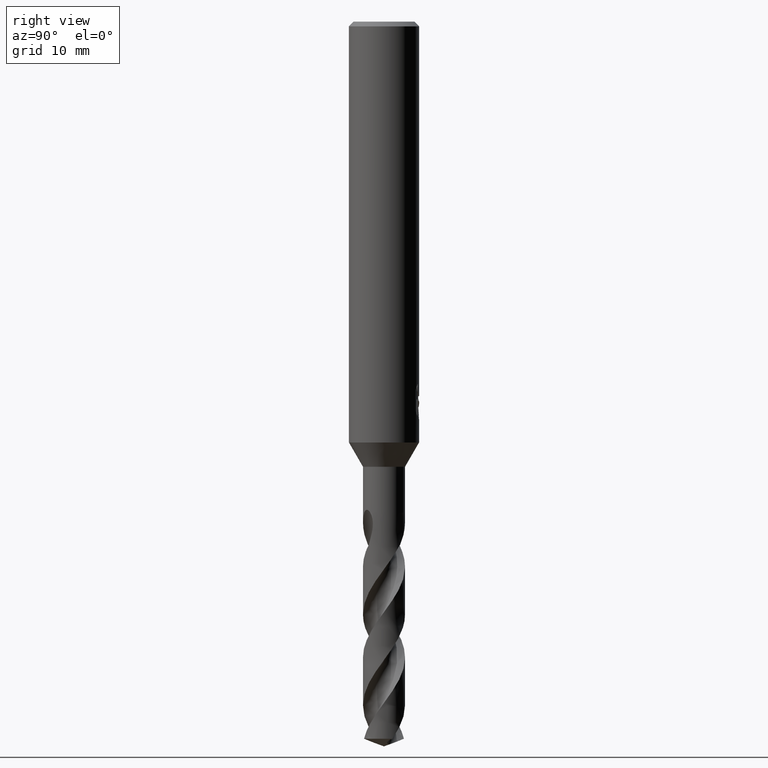
[diagram: clean part render]
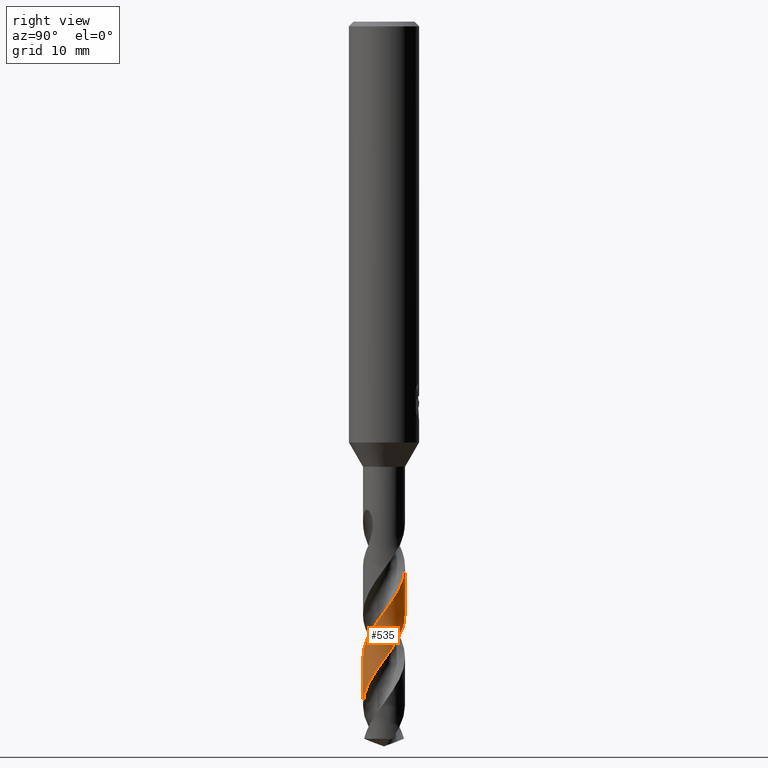
[diagram: same view with one face highlighted and labeled with its STEP entity id]
A machine part, right view. The second image highlights one B-rep face of the part: STEP entity #535.
In plain terms, the highlighted conical surface has half-angle 0 deg.
Its self-contained STEP definition (entity closure, byte-faithful):
#339=EDGE_CURVE('',#689,#525,#837,.T.);
#391=EDGE_CURVE('',#409,#709,#895,.T.);
#409=VERTEX_POINT('',#915);
#525=VERTEX_POINT('',#1040);
#529=EDGE_CURVE('',#689,#709,#1044,.T.);
#535=ADVANCED_FACE('',(#1050),#1051,.T.);
#551=EDGE_CURVE('',#409,#525,#1068,.T.);
#689=VERTEX_POINT('',#1218);
#709=VERTEX_POINT('',#1240);
#837=LINE('',#2212,#2213);
#895=LINE('',#2344,#2345);
#915=CARTESIAN_POINT('',(1.54432829102446E-013,-1.79998520870991,-58.4835001682653));
#1040=CARTESIAN_POINT('',(-3.37949462589216E-013,1.79994508140663,-50.7209321035855));
#1044=B_SPLINE_CURVE_WITH_KNOTS('',3,(#2924,#2925,#2926,#2927,#2928,#2929,#2930,#2931,#2932,#2933,#2934,#2935,#2936,#2937,#2938,#2939,#2940,#2941,#2942,#2943,#2944,#2945,#2946,#2947,#2948,#2949,#2950,#2951,#2952,#2953,#2954,#2955,#2956,#2957,#2958,#2959,#2960,#2961,#2962,#2963,#2964,#2965,#2966,#2967,#2968,#2969,#2970,#2971,#2972,#2973,#2974,#2975,#2976,#2977,#2978,#2979,#2980,#2981,#2982,#2983,#2984,#2985,#2986,#2987,#2988,#2989,#2990,#2991,#2992,#2993,#2994,#2995,#2996,#2997,#2998,#2999,#3000,#3001,#3002,#3003,#3004,#3005,#3006,#3007,#3008,#3009,#3010,#3011,#3012,#3013,#3014,#3015),.UNSPECIFIED.,.F.,.F.,(4,2,2,2,2,2,2,2,2,2,2,2,2,2,2,2,2,2,2,2,2,2,2,2,2,2,2,2,2,2,2,2,2,2,2,2,2,2,2,2,2,2,2,2,2,4),(0.0,0.0801275728356934,0.130640581271298,0.152770367560535,0.364242791769353,0.436986929266372,0.483223075265851,0.526425984111781,0.584005423472898,0.64787631398162,0.711979466175985,0.937580127871979,1.09061263745437,1.24729845891459,1.41532175623204,1.85228257452561,2.28668484765657,3.88904521678665,4.19995671742326,4.83198279183286,5.34008231756774,5.41199511941395,6.4894051909236,6.86720263610227,7.52038772077632,8.02813889238809,8.06407526817173,9.08928789291321,9.5281073355874,10.1611718763682,11.1740732910324,11.6763649494397,12.6696582946601,13.1752127393228,13.5562524910559,14.2031650488221,14.7103302923921,14.7829546060452,15.8480917383284,16.230617229164,16.8729634825393,17.804559745901,18.4974868234268,19.0192346383442,19.806682905026,20.6024096482353),.UNSPECIFIED.);
#1050=FACE_OUTER_BOUND('',#3035,.T.);
#1051=CONICAL_SURFACE('',#3036,1.79995,5.16933351778713E-006);
#1068=B_SPLINE_CURVE_WITH_KNOTS('',3,(#3096,#3097,#3098,#3099,#3100,#3101,#3102,#3103,#3104,#3105,#3106,#3107,#3108,#3109,#3110,#3111,#3112,#3113,#3114,#3115,#3116,#3117,#3118,#3119,#3120,#3121,#3122,#3123,#3124,#3125,#3126,#3127,#3128,#3129,#3130,#3131,#3132,#3133,#3134,#3135,#3136,#3137,#3138,#3139,#3140,#3141,#3142,#3143,#3144,#3145,#3146,#3147,#3148,#3149,#3150,#3151,#3152,#3153,#3154,#3155,#3156,#3157,#3158,#3159,#3160,#3161,#3162,#3163,#3164,#3165,#3166,#3167,#3168,#3169,#3170,#3171,#3172,#3173,#3174,#3175,#3176,#3177,#3178,#3179,#3180,#3181),.UNSPECIFIED.,.F.,.F.,(4,2,2,2,2,2,2,2,2,2,2,2,2,2,2,2,2,2,2,2,2,2,2,2,2,2,2,2,2,2,2,2,2,2,2,2,2,2,2,2,2,2,4),(0.0,1.12411938036322,1.49324315704113,1.74453484574494,1.94282180091867,3.12705528991454,3.33654301239007,3.95056891416491,4.29934719736765,4.79735921376205,5.45424133829332,6.06638189493079,6.68732988189182,7.03621234367762,7.5130802149083,8.51715431163137,8.61247286430807,9.8791590155175,9.97483264010817,11.2588728954634,11.3581590474799,12.023501562368,12.3548440012357,12.8572270642529,13.5478783817825,14.2140701310191,14.8728094680683,15.1574742927351,15.5829827516386,16.1999208734387,16.9304378066444,18.6258990346717,18.8534289403823,19.1928745820494,19.5643500056512,19.8131056433637,20.0457090619538,20.178211271906,20.2571943623207,20.3322287400588,20.43500247704,20.6530979104347,20.9221348459928),.UNSPECIFIED.);
#1218=CARTESIAN_POINT('',(-4.99576087066229E-014,1.79992393457106,-46.630107724356));
#1240=CARTESIAN_POINT('',(1.93326473997876E-011,-1.79996406285208,-54.3928649318378));
#2212=CARTESIAN_POINT('',(-2.17192993895783E-016,1.79995,-51.6724267891604));
#2213=VECTOR('',#5248,1.0);
#2344=CARTESIAN_POINT('',(2.23653047416734E-016,-1.79995,-51.6724267891604));
#2345=VECTOR('',#5316,1.0);
#2924=CARTESIAN_POINT('',(-1.25107846384555,1.29402218899784,-44.7266));
#2925=CARTESIAN_POINT('',(-1.24027997315074,1.30446247723825,-44.7486856030282));
#2926=CARTESIAN_POINT('',(-1.22931985899429,1.31479805987491,-44.770741940663));
#2927=CARTESIAN_POINT('',(-1.21112952030387,1.33152123625317,-44.8066507058394));
#2928=CARTESIAN_POINT('',(-1.20402683326182,1.33794784889731,-44.8205053007073));
#2929=CARTESIAN_POINT('',(-1.19369278018802,1.34714816521415,-44.840408565273));
#2930=CARTESIAN_POINT('',(-1.19053018046315,1.34994398135344,-44.8464661610803));
#2931=CARTESIAN_POINT('',(-1.15697992201892,1.37939290758704,-44.9103678385539));
#2932=CARTESIAN_POINT('',(-1.12574948806274,1.40503159711375,-44.9667047948314));
#2933=CARTESIAN_POINT('',(-1.08132242832629,1.43897296937848,-45.0429731437794));
#2934=CARTESIAN_POINT('',(-1.06981352638825,1.44755102496615,-45.0624129704402));
#2935=CARTESIAN_POINT('',(-1.05073363354246,1.46141726782043,-45.0941929911817));
#2936=CARTESIAN_POINT('',(-1.04326662140661,1.4667573666756,-45.1065212586565));
#2937=CARTESIAN_POINT('',(-1.02871559874037,1.47699571458388,-45.1303615402892));
#2938=CARTESIAN_POINT('',(-1.0216450275926,1.48189543218479,-45.1418635278364));
#2939=CARTESIAN_POINT('',(-1.00505162866476,1.4932186458541,-45.1686943669944));
#2940=CARTESIAN_POINT('',(-0.995507011768867,1.49959891529972,-45.1840046647025));
#2941=CARTESIAN_POINT('',(-0.975243171108675,1.5128657789001,-45.2163207799261));
#2942=CARTESIAN_POINT('',(-0.964525549533127,1.51972105296408,-45.2333035952023));
#2943=CARTESIAN_POINT('',(-0.942935684377382,1.53321091839622,-45.2673948177004));
#2944=CARTESIAN_POINT('',(-0.932181788504982,1.53977270350674,-45.2843314228932));
#2945=CARTESIAN_POINT('',(-0.882805814234656,1.56919078380765,-45.3620438079946));
#2946=CARTESIAN_POINT('',(-0.843737429614365,1.59052298104124,-45.4232076540324));
#2947=CARTESIAN_POINT('',(-0.777391191302479,1.6236585127211,-45.5256396948722));
#2948=CARTESIAN_POINT('',(-0.750263648624428,1.63637008695651,-45.5671377068432));
#2949=CARTESIAN_POINT('',(-0.69477608754419,1.66070275909973,-45.651020383976));
#2950=CARTESIAN_POINT('',(-0.666350073345946,1.67231339256699,-45.6934815636537));
#2951=CARTESIAN_POINT('',(-0.606751035829838,1.6948897122226,-45.7812983847883));
#2952=CARTESIAN_POINT('',(-0.575719031953793,1.70568057624154,-45.8262998629498));
#2953=CARTESIAN_POINT('',(-0.462544629126563,1.74158578142141,-45.9888747946772));
#2954=CARTESIAN_POINT('',(-0.379088455427082,1.76163305914027,-46.1057598569263));
#2955=CARTESIAN_POINT('',(-0.210515162809677,1.78959802250242,-46.3400333641579));
#2956=CARTESIAN_POINT('',(-0.125714246723434,1.79753673626182,-46.4571726928985));
#2957=CARTESIAN_POINT('',(0.272565774571205,1.80656304044718,-47.0051248461491));
#2958=CARTESIAN_POINT('',(0.582677163669993,1.73170316361575,-47.4278651026435));
#2959=CARTESIAN_POINT('',(0.912150075500356,1.55288241310251,-47.9420120771048));
#2960=CARTESIAN_POINT('',(0.964134349643687,1.52114983345936,-48.0255148732838));
#2961=CARTESIAN_POINT('',(1.11652214052572,1.41718865794256,-48.2791380234444));
#2962=CARTESIAN_POINT('',(1.21127928594,1.33711923303439,-48.4489430878359));
#2963=CARTESIAN_POINT('',(1.36610806294819,1.1761883757985,-48.75546117606));
#2964=CARTESIAN_POINT('',(1.4290602482175,1.09885022034302,-48.891629060111));
#2965=CARTESIAN_POINT('',(1.49327020872929,1.00504422136788,-49.0474994326812));
#2966=CARTESIAN_POINT('',(1.5010915339852,0.993324841130369,-49.0668211680548));
#2967=CARTESIAN_POINT('',(1.62388653655451,0.80456843900387,-49.3758203885027));
#2968=CARTESIAN_POINT('',(1.70705542658564,0.608591173500975,-49.6642722627178));
#2969=CARTESIAN_POINT('',(1.77089672056618,0.330459389006471,-50.0555433257593));
#2970=CARTESIAN_POINT('',(1.78298521001172,0.257353129290507,-50.1569468416767));
#2971=CARTESIAN_POINT('',(1.8035999081013,0.0564841602595887,-50.4344024448235));
#2972=CARTESIAN_POINT('',(1.80306146960774,-0.0718773539759362,-50.6099825883865));
#2973=CARTESIAN_POINT('',(1.77788320827086,-0.298069436001126,-50.9223133860093));
#2974=CARTESIAN_POINT('',(1.758682554073,-0.395927779319998,-51.0584938044839));
#2975=CARTESIAN_POINT('',(1.7295569126317,-0.498491573460314,-51.2047274072979));
#2976=CARTESIAN_POINT('',(1.7275924330117,-0.505257877377468,-51.2143916477592));
#2977=CARTESIAN_POINT('',(1.66840227081449,-0.704745699690844,-51.4998987247195));
#2978=CARTESIAN_POINT('',(1.57926666135973,-0.886692270422783,-51.7749678868059));
#2979=CARTESIAN_POINT('',(1.41163726958623,-1.12005648430381,-52.1689502920746));
#2980=CARTESIAN_POINT('',(1.35647417462525,-1.18625886668505,-52.2867267828357));
#2981=CARTESIAN_POINT('',(1.21074840916992,-1.33765769818534,-52.5754130267082));
#2982=CARTESIAN_POINT('',(1.11562485281688,-1.41797258877119,-52.7457724443571));
#2983=CARTESIAN_POINT('',(0.848701123769507,-1.59970082643918,-53.1889918377442));
#2984=CARTESIAN_POINT('',(0.66711347020152,-1.68351672253562,-53.4594121475296));
#2985=CARTESIAN_POINT('',(0.38068494713536,-1.761996755098,-53.8676128596576));
#2986=CARTESIAN_POINT('',(0.283692882374468,-1.78019711190531,-54.002667726906));
#2987=CARTESIAN_POINT('',(-0.00829648629090884,-1.81047319803751,-54.4052824610058));
#2988=CARTESIAN_POINT('',(-0.204121966597569,-1.79892881996381,-54.6712144494556));
#2989=CARTESIAN_POINT('',(-0.490888836109649,-1.73457154250139,-55.0749468080224));
#2990=CARTESIAN_POINT('',(-0.585713077924323,-1.70489804761957,-55.2107723943971));
#2991=CARTESIAN_POINT('',(-0.746968443232303,-1.63936716658188,-55.4494183896481));
#2992=CARTESIAN_POINT('',(-0.814397092613209,-1.60693260953116,-55.5517905927933));
#2993=CARTESIAN_POINT('',(-0.99026340093244,-1.50843216362092,-55.8287315705348));
#2994=CARTESIAN_POINT('',(-1.09413211677815,-1.434884856726,-56.0028345646159));
#2995=CARTESIAN_POINT('',(-1.26413173513083,-1.28521766504058,-56.3136743945243));
#2996=CARTESIAN_POINT('',(-1.33326737773708,-1.21335141645174,-56.4498566137454));
#2997=CARTESIAN_POINT('',(-1.40511646764783,-1.12506125472204,-56.6059742084144));
#2998=CARTESIAN_POINT('',(-1.41398141273816,-1.11389941508282,-56.6255259230054));
#2999=CARTESIAN_POINT('',(-1.5507744055079,-0.937399827261559,-56.9320152194358));
#3000=CARTESIAN_POINT('',(-1.64917661896449,-0.750955585474589,-57.2177628447105));
#3001=CARTESIAN_POINT('',(-1.73636596541471,-0.48022094166484,-57.607724608749));
#3002=CARTESIAN_POINT('',(-1.75488498473826,-0.407364727383775,-57.7105714462325));
#3003=CARTESIAN_POINT('',(-1.79216083580235,-0.209729569420195,-57.9868881270495));
#3004=CARTESIAN_POINT('',(-1.80245783696777,-0.0836850975501078,-58.1598958509633));
#3005=CARTESIAN_POINT('',(-1.79517104991919,0.225362787820108,-58.5841348364943));
#3006=CARTESIAN_POINT('',(-1.76299388526116,0.4064619120893,-58.8332487263245));
#3007=CARTESIAN_POINT('',(-1.66038530358428,0.708211517284509,-59.2713983407626));
#3008=CARTESIAN_POINT('',(-1.60214312845797,0.831650797378466,-59.4576129720634));
#3009=CARTESIAN_POINT('',(-1.47650915677744,1.03460301917693,-59.784935270995));
#3010=CARTESIAN_POINT('',(-1.41523180391952,1.11694998150334,-59.9252314559151));
#3011=CARTESIAN_POINT('',(-1.2448569225695,1.30927228921115,-60.2782926668155));
#3012=CARTESIAN_POINT('',(-1.12781808577772,1.41137370641141,-60.4897249391201));
#3013=CARTESIAN_POINT('',(-0.86891792692422,1.58412294119532,-60.9162754521077));
#3014=CARTESIAN_POINT('',(-0.728215360799584,1.65348767870022,-61.1301272405968));
#3015=CARTESIAN_POINT('',(-0.580592727958881,1.70379343942899,-61.3448535783208));
#3035=EDGE_LOOP('',(#5495,#5496,#5497,#5498));
#3036=AXIS2_PLACEMENT_3D('',#5499,#5500,#5501);
#3096=CARTESIAN_POINT('',(-1.64813797036206,-0.723630589908148,-61.3448535783208));
#3097=CARTESIAN_POINT('',(-1.55907774788649,-0.92646988992758,-61.0426459900695));
#3098=CARTESIAN_POINT('',(-1.43361391478408,-1.11064020517116,-60.7372898041585));
#3099=CARTESIAN_POINT('',(-1.22702119732803,-1.31896174919522,-60.3355519989796));
#3100=CARTESIAN_POINT('',(-1.17289139852565,-1.36731948228192,-60.236534160926));
#3101=CARTESIAN_POINT('',(-1.0772716460219,-1.44287860706178,-60.0696093073097));
#3102=CARTESIAN_POINT('',(-1.03736579050346,-1.47182444548981,-60.0020378104356));
#3103=CARTESIAN_POINT('',(-0.964069567802687,-1.52054246158198,-59.8808563086614));
#3104=CARTESIAN_POINT('',(-0.93113180372499,-1.54092981920663,-59.8272911324396));
#3105=CARTESIAN_POINT('',(-0.69711010113258,-1.67555463476553,-59.4549919737755));
#3106=CARTESIAN_POINT('',(-0.476568229454699,-1.75104681221587,-59.1447401808734));
#3107=CARTESIAN_POINT('',(-0.207389769483681,-1.7884658751184,-58.7698019530655));
#3108=CARTESIAN_POINT('',(-0.166796640270785,-1.79270907325249,-58.7133098845063));
#3109=CARTESIAN_POINT('',(-0.00626075828157309,-1.80396947871984,-58.49145692073));
#3110=CARTESIAN_POINT('',(0.114251174413892,-1.80039820326396,-58.3273866342543));
#3111=CARTESIAN_POINT('',(0.301744093499417,-1.77583271316578,-58.0688170313883));
#3112=CARTESIAN_POINT('',(0.36901159383645,-1.76307552141418,-57.9753343367017));
#3113=CARTESIAN_POINT('',(0.529958997167464,-1.72296049452636,-57.747603781038));
#3114=CARTESIAN_POINT('',(0.6223506812157,-1.69177452946414,-57.6128203544186));
#3115=CARTESIAN_POINT('',(0.829853683870008,-1.602429315277,-57.3022338101806));
#3116=CARTESIAN_POINT('',(0.942227235901725,-1.53906640147755,-57.1271909055034));
#3117=CARTESIAN_POINT('',(1.14466643691986,-1.39429773520166,-56.7865306581728));
#3118=CARTESIAN_POINT('',(1.2348746106617,-1.31500729795,-56.6212696612529));
#3119=CARTESIAN_POINT('',(1.39887324829514,-1.13917509743918,-56.290217351832));
#3120=CARTESIAN_POINT('',(1.47246885862468,-1.04236222166026,-56.1248811290354));
#3121=CARTESIAN_POINT('',(1.5714856640054,-0.880339030140718,-55.8651874296132));
#3122=CARTESIAN_POINT('',(1.60369860560651,-0.820171623670064,-55.7719321673608));
#3123=CARTESIAN_POINT('',(1.67158965301551,-0.674046371438702,-55.5504194922057));
#3124=CARTESIAN_POINT('',(1.70417574237739,-0.586812835556721,-55.4216883117955));
#3125=CARTESIAN_POINT('',(1.78408656194754,-0.308828228461722,-55.0242991885647));
#3126=CARTESIAN_POINT('',(1.80700792806774,-0.113051385317736,-54.7601235778661));
#3127=CARTESIAN_POINT('',(1.79724253670254,0.100674314416281,-54.464797842195));
#3128=CARTESIAN_POINT('',(1.79611198269064,0.119145258823308,-54.4391911753532));
#3129=CARTESIAN_POINT('',(1.77589961882218,0.382759052938424,-54.0739117752759));
#3130=CARTESIAN_POINT('',(1.70713412242742,0.621195261158978,-53.7447950254864));
#3131=CARTESIAN_POINT('',(1.58406131081425,0.854953641921537,-53.3800619306313));
#3132=CARTESIAN_POINT('',(1.57518603792353,0.871196620125842,-53.354447770689));
#3133=CARTESIAN_POINT('',(1.44346459283544,1.10367178745066,-52.985340507672));
#3134=CARTESIAN_POINT('',(1.27758639211249,1.29199537482523,-52.6527761163337));
#3135=CARTESIAN_POINT('',(1.06348167000705,1.45231079658459,-52.2832415320888));
#3136=CARTESIAN_POINT('',(1.04793811510445,1.46356683984874,-52.2566917113052));
#3137=CARTESIAN_POINT('',(0.926360997996077,1.54866292825599,-52.0518136932591));
#3138=CARTESIAN_POINT('',(0.812630771308074,1.61131196435716,-51.8751696191065));
#3139=CARTESIAN_POINT('',(0.633043546631002,1.68619657055166,-51.6090953218797));
#3140=CARTESIAN_POINT('',(0.572105210489127,1.70782878245848,-51.5207987404292));
#3141=CARTESIAN_POINT('',(0.416352232751806,1.75386480704476,-51.2979778131649));
#3142=CARTESIAN_POINT('',(0.320616441671899,1.77384809253672,-51.1628550080548));
#3143=CARTESIAN_POINT('',(0.0906912718115085,1.80265765319494,-50.8440480833338));
#3144=CARTESIAN_POINT('',(-0.0440361777720671,1.8044299102622,-50.6613287782073));
#3145=CARTESIAN_POINT('',(-0.307087728698379,1.77829614584792,-50.2995364678267));
#3146=CARTESIAN_POINT('',(-0.434201365832459,1.7515558050323,-50.1208102855282));
#3147=CARTESIAN_POINT('',(-0.67850276396783,1.67204507229003,-49.7673738095596));
#3148=CARTESIAN_POINT('',(-0.795580443932835,1.61964522258583,-49.5932281148711));
#3149=CARTESIAN_POINT('',(-0.954122997688022,1.52724974481075,-49.3421001825572));
#3150=CARTESIAN_POINT('',(-1.00057374278275,1.49722200322002,-49.266393213726));
#3151=CARTESIAN_POINT('',(-1.1126578389655,1.41724053350639,-49.0770273807366));
#3152=CARTESIAN_POINT('',(-1.17634444146857,1.36484337336488,-48.9629565202176));
#3153=CARTESIAN_POINT('',(-1.32331998656484,1.22593351275078,-48.6849245497431));
#3154=CARTESIAN_POINT('',(-1.4020038617771,1.13514617396907,-48.5217411879596));
#3155=CARTESIAN_POINT('',(-1.55306036925771,0.920848946939103,-48.1630825238164));
#3156=CARTESIAN_POINT('',(-1.62070925298458,0.795633677827889,-47.9674564492609));
#3157=CARTESIAN_POINT('',(-1.79394308137507,0.359351703532186,-47.3212522313856));
#3158=CARTESIAN_POINT('',(-1.82916127274988,0.0274158912374177,-46.8842788998041));
#3159=CARTESIAN_POINT('',(-1.76838534328388,-0.338317881233773,-46.3720098597111));
#3160=CARTESIAN_POINT('',(-1.75964601977304,-0.381170905024912,-46.3112432143355));
#3161=CARTESIAN_POINT('',(-1.73390115264819,-0.487430986923653,-46.1602724415822));
#3162=CARTESIAN_POINT('',(-1.71493022078593,-0.550576660948558,-46.0700944747612));
#3163=CARTESIAN_POINT('',(-1.66759310957754,-0.681263887643777,-45.8821353355285));
#3164=CARTESIAN_POINT('',(-1.63974934449616,-0.745603993135924,-45.7900436504507));
#3165=CARTESIAN_POINT('',(-1.58674071287272,-0.850999591570335,-45.6305203984968));
#3166=CARTESIAN_POINT('',(-1.56416338479961,-0.891734079052297,-45.5664056230913));
#3167=CARTESIAN_POINT('',(-1.51840729235638,-0.967455973217168,-45.4404579157813));
#3168=CARTESIAN_POINT('',(-1.49554078211119,-1.00235338128326,-45.3792260572209));
#3169=CARTESIAN_POINT('',(-1.45883778533634,-1.05452801995454,-45.2814146510169));
#3170=CARTESIAN_POINT('',(-1.45015563457819,-1.06640094373626,-45.2576599033874));
#3171=CARTESIAN_POINT('',(-1.42950922616035,-1.09378567123989,-45.2059171814158));
#3172=CARTESIAN_POINT('',(-1.42155865067872,-1.10410440490966,-45.1867678472282));
#3173=CARTESIAN_POINT('',(-1.40552953027712,-1.12443070231839,-45.1497093087356));
#3174=CARTESIAN_POINT('',(-1.39749099480729,-1.1344104828473,-45.1318178719731));
#3175=CARTESIAN_POINT('',(-1.37784882043911,-1.15825253757473,-45.0897592135649));
#3176=CARTESIAN_POINT('',(-1.36605141261273,-1.17215534179693,-45.06577188255));
#3177=CARTESIAN_POINT('',(-1.32769364099066,-1.21593189806655,-44.9917524974143));
#3178=CARTESIAN_POINT('',(-1.29960810623403,-1.24601467028369,-44.943056143609));
#3179=CARTESIAN_POINT('',(-1.23169083818281,-1.31355582956116,-44.837019249382));
#3180=CARTESIAN_POINT('',(-1.19104119266214,-1.35069751416398,-44.7809382177849));
#3181=CARTESIAN_POINT('',(-1.14696331556465,-1.38714307159205,-44.7266));
#5248=DIRECTION('',(-6.33039867088091E-022,5.16933351776411E-006,-0.999999999986639));
#5316=DIRECTION('',(-6.33039867088091E-022,5.16933351776411E-006,0.999999999986639));
#5495=ORIENTED_EDGE('',*,*,#339,.F.);
#5496=ORIENTED_EDGE('',*,*,#529,.T.);
#5497=ORIENTED_EDGE('',*,*,#391,.F.);
#5498=ORIENTED_EDGE('',*,*,#551,.T.);
#5499=CARTESIAN_POINT('',(0.0,0.0,-51.6724267891604));
#5500=DIRECTION('',(0.0,-0.0,-1.0));
#5501=DIRECTION('',(0.0,1.0,0.0));